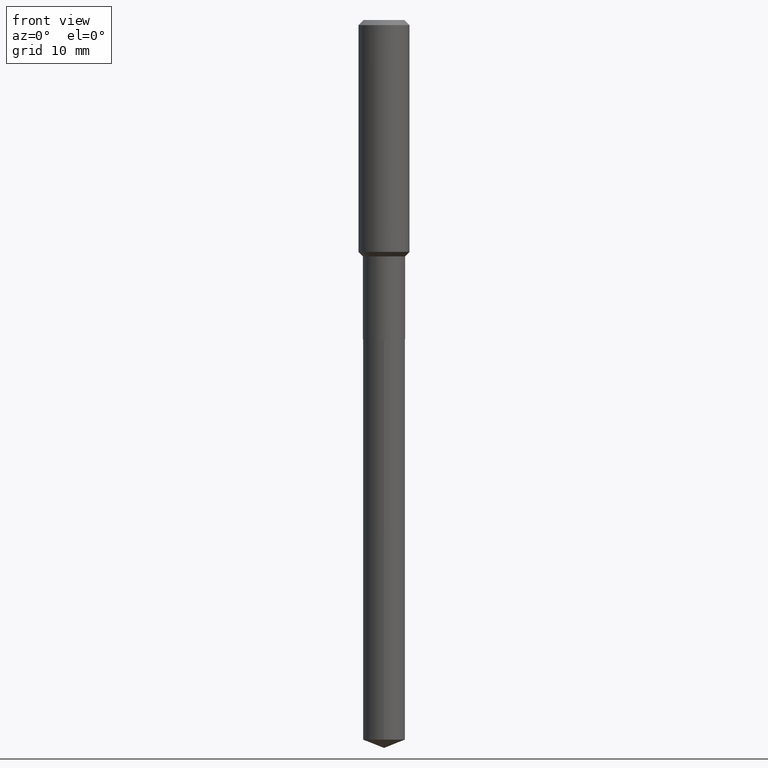
[diagram: clean part render]
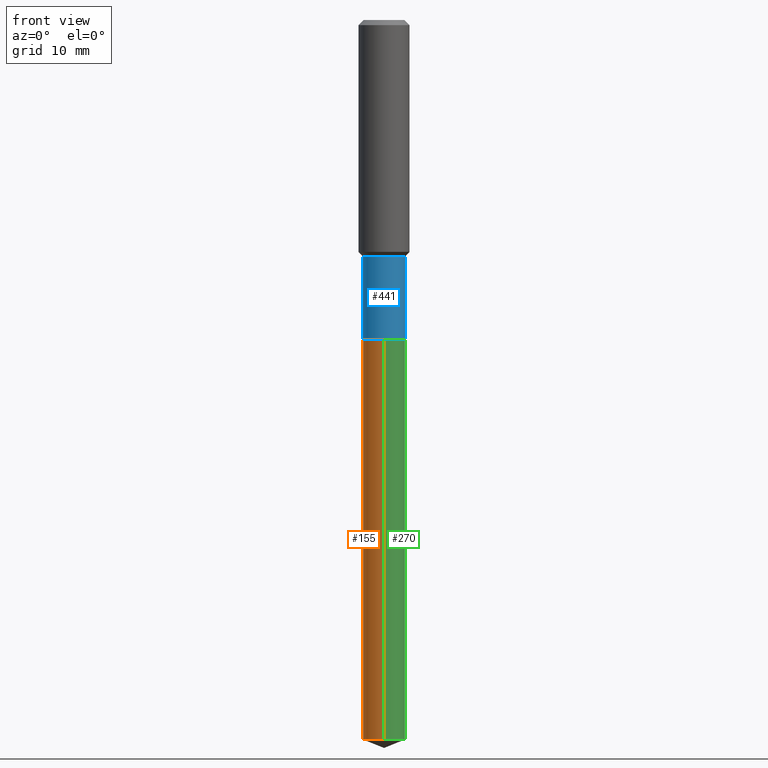
[diagram: same view with three faces highlighted in distinct colors, each labeled with its STEP entity id]
A machine part, front view with three faces highlighted in distinct colors.
Their STEP definitions:

[orange] entity #155 — the highlighted cylindrical surface (edge-blend (fillet) strip) has radius 3.2995 mm, axis along (-0, 0, 1).
#11 = ORIENTED_EDGE ( 'NONE', *, *, #37, .F. ) ;
#12 = DIRECTION ( 'NONE',  ( -6.982962677686266711E-15, -1.000000000000000000, 4.206078512185163024E-15 ) ) ;
#19 = AXIS2_PLACEMENT_3D ( 'NONE', #305, #152, #12 ) ;
#23 = CARTESIAN_POINT ( 'NONE',  ( 9.229950137524781280E-16, 0.1298999999999845001, -4.437031029217619604 ) ) ;
#35 = VECTOR ( 'NONE', #219, 39.37007874015748143 ) ;
#37 = EDGE_CURVE ( 'NONE', #59, #281, #223, .T. ) ;
#38 = DIRECTION ( 'NONE',  ( -2.445397477310179380E-29, 3.491583485851871163E-15, 1.000000000000000000 ) ) ;
#59 = VERTEX_POINT ( 'NONE', #113 ) ;
#82 = LINE ( 'NONE', #310, #247 ) ;
#97 = EDGE_CURVE ( 'NONE', #207, #281, #180, .T. ) ;
#113 = CARTESIAN_POINT ( 'NONE',  ( 9.229950137524787196E-16, 0.1298999999999931043, -1.968500000000000583 ) ) ;
#152 = DIRECTION ( 'NONE',  ( -2.445397477310179660E-29, 3.491583485851871163E-15, 1.000000000000000000 ) ) ;
#155 = ADVANCED_FACE ( 'NONE', ( #332 ), #412, .T. ) ;
#159 = EDGE_CURVE ( 'NONE', #176, #59, #82, .T. ) ;
#176 = VERTEX_POINT ( 'NONE', #23 ) ;
#179 = CARTESIAN_POINT ( 'NONE',  ( -9.070868518313371293E-16, -0.1299000000000154198, -4.437031029217618716 ) ) ;
#180 = LINE ( 'NONE', #259, #35 ) ;
#207 = VERTEX_POINT ( 'NONE', #179 ) ;
#215 = ORIENTED_EDGE ( 'NONE', *, *, #159, .F. ) ;
#219 = DIRECTION ( 'NONE',  ( -2.445397477310179380E-29, 3.491583485851871163E-15, 1.000000000000000000 ) ) ;
#222 = AXIS2_PLACEMENT_3D ( 'NONE', #471, #477, #389 ) ;
#223 = CIRCLE ( 'NONE', #383, 0.1298999999999999877 ) ;
#226 = CARTESIAN_POINT ( 'NONE',  ( -9.070868518313978715E-16, -0.1299000000000068711, -1.968499999999999472 ) ) ;
#247 = VECTOR ( 'NONE', #38, 39.37007874015748143 ) ;
#259 = CARTESIAN_POINT ( 'NONE',  ( -9.070868518313978715E-16, -0.1299000000000068711, -1.968499999999999250 ) ) ;
#281 = VERTEX_POINT ( 'NONE', #226 ) ;
#287 = CIRCLE ( 'NONE', #222, 0.1298999999999999877 ) ;
#305 = CARTESIAN_POINT ( 'NONE',  ( 4.813905344975440714E-29, -6.872981015512730918E-15, -1.968499999999999694 ) ) ;
#310 = CARTESIAN_POINT ( 'NONE',  ( 9.229950137524181746E-16, 0.1298999999999931043, -1.968500000000000361 ) ) ;
#321 = CARTESIAN_POINT ( 'NONE',  ( 4.813905344975441835E-29, -6.872981015512731707E-15, -1.968500000000000139 ) ) ;
#323 = EDGE_CURVE ( 'NONE', #176, #207, #287, .T. ) ;
#332 = FACE_OUTER_BOUND ( 'NONE', #446, .T. ) ;
#341 = ORIENTED_EDGE ( 'NONE', *, *, #323, .T. ) ;
#348 = ORIENTED_EDGE ( 'NONE', *, *, #97, .T. ) ;
#362 = DIRECTION ( 'NONE',  ( -6.982962677686266711E-15, -1.000000000000000000, 4.206078512185163024E-15 ) ) ;
#363 = DIRECTION ( 'NONE',  ( -2.445397477310179660E-29, 3.491583485851871163E-15, 1.000000000000000000 ) ) ;
#383 = AXIS2_PLACEMENT_3D ( 'NONE', #321, #363, #362 ) ;
#389 = DIRECTION ( 'NONE',  ( -6.982962677686266711E-15, -1.000000000000000000, 4.206078512185163024E-15 ) ) ;
#412 = CYLINDRICAL_SURFACE ( 'NONE', #19, 0.1298999999999999877 ) ;
#446 = EDGE_LOOP ( 'NONE', ( #215, #341, #348, #11 ) ) ;
#471 = CARTESIAN_POINT ( 'NONE',  ( 1.085044489648610678E-28, -1.549206319144189392E-14, -4.437031029217618716 ) ) ;
#477 = DIRECTION ( 'NONE',  ( -2.445397477310179660E-29, 3.491583485851871163E-15, 1.000000000000000000 ) ) ;

[blue] entity #441 — the highlighted cylindrical surface (edge-blend (fillet) strip) has radius 3.2995 mm, axis along (-0, 0, 1).
#33 = CARTESIAN_POINT ( 'NONE',  ( 0.1298999999999999599, -9.070868518314457948E-16, 6.334153631758918028E-30 ) ) ;
#34 = CIRCLE ( 'NONE', #462, 0.1298999999999999322 ) ;
#36 = DIRECTION ( 'NONE',  ( -2.445468806185136597E-29, 3.491481338843145583E-15, 1.000000000000000000 ) ) ;
#54 = VECTOR ( 'NONE', #373, 39.37007874015748143 ) ;
#69 = CARTESIAN_POINT ( 'NONE',  ( 0.1298999999999999322, -5.994524310659792457E-15, -1.457100000000000062 ) ) ;
#84 = CARTESIAN_POINT ( 'NONE',  ( 0.1298999999999999877, -7.778322126674757379E-15, -1.968000000000000194 ) ) ;
#111 = CARTESIAN_POINT ( 'NONE',  ( -0.1298999999999999877, -5.056341353083458675E-15, -1.968000000000000194 ) ) ;
#116 = CARTESIAN_POINT ( 'NONE',  ( -0.1298999999999999599, 9.229950137523698568E-16, -6.389696682241120408E-30 ) ) ;
#127 = VERTEX_POINT ( 'NONE', #111 ) ;
#128 = EDGE_CURVE ( 'NONE', #127, #459, #282, .T. ) ;
#130 = EDGE_LOOP ( 'NONE', ( #298, #423, #421, #167 ) ) ;
#143 = DIRECTION ( 'NONE',  ( -2.445468806185136597E-29, 3.491481338843145583E-15, 1.000000000000000000 ) ) ;
#154 = VECTOR ( 'NONE', #447, 39.37007874015748143 ) ;
#167 = ORIENTED_EDGE ( 'NONE', *, *, #388, .F. ) ;
#169 = VERTEX_POINT ( 'NONE', #443 ) ;
#170 = EDGE_CURVE ( 'NONE', #127, #169, #448, .T. ) ;
#196 = CARTESIAN_POINT ( 'NONE',  ( 0.000000000000000000, 0.000000000000000000, 0.000000000000000000 ) ) ;
#234 = DIRECTION ( 'NONE',  ( 1.000000000000000000, -6.982962677686266711E-15, 4.876176775795935232E-29 ) ) ;
#278 = DIRECTION ( 'NONE',  ( 1.000000000000000000, -6.982962677686268288E-15, 0.000000000000000000 ) ) ;
#282 = CIRCLE ( 'NONE', #375, 0.1298999999999999877 ) ;
#293 = DIRECTION ( 'NONE',  ( 1.000000000000000000, -6.982962677686263555E-15, 0.000000000000000000 ) ) ;
#298 = ORIENTED_EDGE ( 'NONE', *, *, #170, .F. ) ;
#330 = VERTEX_POINT ( 'NONE', #69 ) ;
#360 = CARTESIAN_POINT ( 'NONE',  ( 3.563292597492362932E-29, -5.087437458828347648E-15, -1.457100000000000062 ) ) ;
#366 = CARTESIAN_POINT ( 'NONE',  ( 4.812682610572349594E-29, -6.871235274843310993E-15, -1.968000000000000194 ) ) ;
#373 = DIRECTION ( 'NONE',  ( -2.445468806185136877E-29, 3.491481338843145188E-15, 1.000000000000000000 ) ) ;
#375 = AXIS2_PLACEMENT_3D ( 'NONE', #366, #36, #278 ) ;
#388 = EDGE_CURVE ( 'NONE', #169, #330, #34, .T. ) ;
#395 = EDGE_CURVE ( 'NONE', #459, #330, #409, .T. ) ;
#405 = DIRECTION ( 'NONE',  ( -2.445468806185136597E-29, 3.491481338843145583E-15, 1.000000000000000000 ) ) ;
#409 = LINE ( 'NONE', #33, #154 ) ;
#419 = AXIS2_PLACEMENT_3D ( 'NONE', #196, #405, #234 ) ;
#421 = ORIENTED_EDGE ( 'NONE', *, *, #395, .T. ) ;
#423 = ORIENTED_EDGE ( 'NONE', *, *, #128, .T. ) ;
#441 = ADVANCED_FACE ( 'NONE', ( #449 ), #442, .T. ) ;
#442 = CYLINDRICAL_SURFACE ( 'NONE', #419, 0.1298999999999999599 ) ;
#443 = CARTESIAN_POINT ( 'NONE',  ( -0.1298999999999999322, -5.056341353083459464E-15, -1.457100000000000062 ) ) ;
#447 = DIRECTION ( 'NONE',  ( -2.445468806185136877E-29, 3.491481338843145188E-15, 1.000000000000000000 ) ) ;
#448 = LINE ( 'NONE', #116, #54 ) ;
#449 = FACE_OUTER_BOUND ( 'NONE', #130, .T. ) ;
#459 = VERTEX_POINT ( 'NONE', #84 ) ;
#462 = AXIS2_PLACEMENT_3D ( 'NONE', #360, #143, #293 ) ;

[green] entity #270 — the highlighted cylindrical surface (edge-blend (fillet) strip) has radius 3.2995 mm, axis along (-0, 0, 1).
#13 = AXIS2_PLACEMENT_3D ( 'NONE', #183, #257, #432 ) ;
#23 = CARTESIAN_POINT ( 'NONE',  ( 9.229950137524781280E-16, 0.1298999999999845001, -4.437031029217619604 ) ) ;
#35 = VECTOR ( 'NONE', #219, 39.37007874015748143 ) ;
#38 = DIRECTION ( 'NONE',  ( -2.445397477310179380E-29, 3.491583485851871163E-15, 1.000000000000000000 ) ) ;
#40 = ORIENTED_EDGE ( 'NONE', *, *, #97, .F. ) ;
#59 = VERTEX_POINT ( 'NONE', #113 ) ;
#61 = AXIS2_PLACEMENT_3D ( 'NONE', #194, #201, #121 ) ;
#82 = LINE ( 'NONE', #310, #247 ) ;
#96 = CIRCLE ( 'NONE', #454, 0.1298999999999999877 ) ;
#97 = EDGE_CURVE ( 'NONE', #207, #281, #180, .T. ) ;
#113 = CARTESIAN_POINT ( 'NONE',  ( 9.229950137524787196E-16, 0.1298999999999931043, -1.968500000000000583 ) ) ;
#121 = DIRECTION ( 'NONE',  ( -6.982962677686266711E-15, -1.000000000000000000, 4.206078512185163024E-15 ) ) ;
#141 = FACE_OUTER_BOUND ( 'NONE', #228, .T. ) ;
#159 = EDGE_CURVE ( 'NONE', #176, #59, #82, .T. ) ;
#176 = VERTEX_POINT ( 'NONE', #23 ) ;
#179 = CARTESIAN_POINT ( 'NONE',  ( -9.070868518313371293E-16, -0.1299000000000154198, -4.437031029217618716 ) ) ;
#180 = LINE ( 'NONE', #259, #35 ) ;
#183 = CARTESIAN_POINT ( 'NONE',  ( 4.813905344975440714E-29, -6.872981015512730918E-15, -1.968499999999999694 ) ) ;
#194 = CARTESIAN_POINT ( 'NONE',  ( 4.813905344975441835E-29, -6.872981015512731707E-15, -1.968500000000000139 ) ) ;
#201 = DIRECTION ( 'NONE',  ( -2.445397477310179660E-29, 3.491583485851871163E-15, 1.000000000000000000 ) ) ;
#207 = VERTEX_POINT ( 'NONE', #179 ) ;
#219 = DIRECTION ( 'NONE',  ( -2.445397477310179380E-29, 3.491583485851871163E-15, 1.000000000000000000 ) ) ;
#226 = CARTESIAN_POINT ( 'NONE',  ( -9.070868518313978715E-16, -0.1299000000000068711, -1.968499999999999472 ) ) ;
#228 = EDGE_LOOP ( 'NONE', ( #426, #401, #314, #40 ) ) ;
#240 = CIRCLE ( 'NONE', #61, 0.1298999999999999877 ) ;
#247 = VECTOR ( 'NONE', #38, 39.37007874015748143 ) ;
#257 = DIRECTION ( 'NONE',  ( -2.445397477310179660E-29, 3.491583485851871163E-15, 1.000000000000000000 ) ) ;
#259 = CARTESIAN_POINT ( 'NONE',  ( -9.070868518313978715E-16, -0.1299000000000068711, -1.968499999999999250 ) ) ;
#270 = ADVANCED_FACE ( 'NONE', ( #141 ), #396, .T. ) ;
#281 = VERTEX_POINT ( 'NONE', #226 ) ;
#283 = EDGE_CURVE ( 'NONE', #207, #176, #96, .T. ) ;
#310 = CARTESIAN_POINT ( 'NONE',  ( 9.229950137524181746E-16, 0.1298999999999931043, -1.968500000000000361 ) ) ;
#314 = ORIENTED_EDGE ( 'NONE', *, *, #487, .F. ) ;
#322 = DIRECTION ( 'NONE',  ( -2.445397477310179660E-29, 3.491583485851871163E-15, 1.000000000000000000 ) ) ;
#393 = CARTESIAN_POINT ( 'NONE',  ( 1.085044489648610678E-28, -1.549206319144189392E-14, -4.437031029217618716 ) ) ;
#396 = CYLINDRICAL_SURFACE ( 'NONE', #13, 0.1298999999999999877 ) ;
#401 = ORIENTED_EDGE ( 'NONE', *, *, #159, .T. ) ;
#426 = ORIENTED_EDGE ( 'NONE', *, *, #283, .T. ) ;
#432 = DIRECTION ( 'NONE',  ( -6.982962677686266711E-15, -1.000000000000000000, 4.206078512185163024E-15 ) ) ;
#454 = AXIS2_PLACEMENT_3D ( 'NONE', #393, #322, #480 ) ;
#480 = DIRECTION ( 'NONE',  ( -6.982962677686266711E-15, -1.000000000000000000, 4.206078512185163024E-15 ) ) ;
#487 = EDGE_CURVE ( 'NONE', #281, #59, #240, .T. ) ;